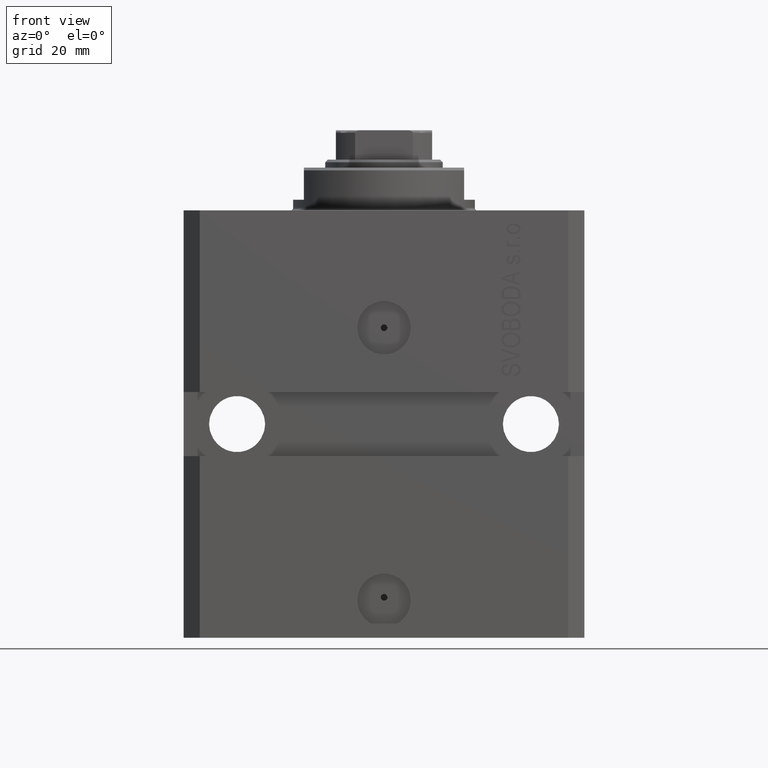
[diagram: clean part render]
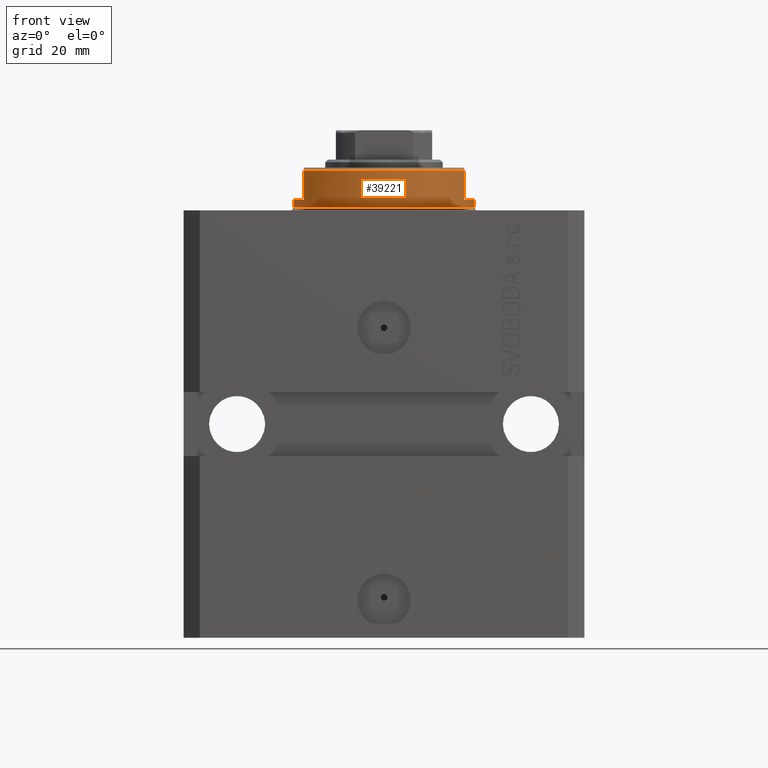
[diagram: same view with one face highlighted and labeled with its STEP entity id]
A machine part, front view. The second image highlights one B-rep face of the part: STEP entity #39221.
In plain terms, the highlighted cylindrical surface (partial cylindrical patch) has radius 17 mm, axis along (0, 0, -1).
Its self-contained STEP definition (entity closure, byte-faithful):
#804 = LINE ( 'NONE', #18800, #24260 ) ;
#1329 = EDGE_CURVE ( 'NONE', #41800, #26841, #804, .T. ) ;
#1713 = VERTEX_POINT ( 'NONE', #13510 ) ;
#1840 = VERTEX_POINT ( 'NONE', #20307 ) ;
#3375 = DIRECTION ( 'NONE',  ( -0.000000000000000000, -0.000000000000000000, 1.000000000000000000 ) ) ;
#3604 = LINE ( 'NONE', #46712, #14459 ) ;
#3856 = EDGE_CURVE ( 'NONE', #34574, #19544, #25253, .T. ) ;
#3862 = DIRECTION ( 'NONE',  ( -0.000000000000000000, -0.000000000000000000, 1.000000000000000000 ) ) ;
#3876 = CARTESIAN_POINT ( 'NONE',  ( 0.000000000000000000, 0.000000000000000000, -8.000000000000000000 ) ) ;
#4361 = FACE_OUTER_BOUND ( 'NONE', #39266, .T. ) ;
#5317 = EDGE_CURVE ( 'NONE', #1713, #21419, #20764, .T. ) ;
#5325 = CARTESIAN_POINT ( 'NONE',  ( 15.00000000000000000, -8.000000000000001776, -7.500000000000007105 ) ) ;
#5501 = ORIENTED_EDGE ( 'NONE', *, *, #5317, .T. ) ;
#7711 = VECTOR ( 'NONE', #38526, 1000.000000000000000 ) ;
#7832 = EDGE_CURVE ( 'NONE', #41800, #38136, #13298, .T. ) ;
#10421 = CARTESIAN_POINT ( 'NONE',  ( 17.00000000000000000, 0.000000000000000000, -2.000000000000000000 ) ) ;
#13271 = ORIENTED_EDGE ( 'NONE', *, *, #34199, .F. ) ;
#13298 = CIRCLE ( 'NONE', #39742, 17.00000000000000000 ) ;
#13510 = CARTESIAN_POINT ( 'NONE',  ( -15.00000000000000000, -8.000000000000001776, -7.500000000000007105 ) ) ;
#13660 = LINE ( 'NONE', #27164, #7711 ) ;
#14459 = VECTOR ( 'NONE', #3375, 1000.000000000000000 ) ;
#16321 = ORIENTED_EDGE ( 'NONE', *, *, #27460, .F. ) ;
#16556 = ORIENTED_EDGE ( 'NONE', *, *, #1329, .T. ) ;
#16857 = ORIENTED_EDGE ( 'NONE', *, *, #29071, .T. ) ;
#17334 = CARTESIAN_POINT ( 'NONE',  ( 14.99999999999999645, -8.000000000000003553, -2.000000000000000000 ) ) ;
#17552 = ORIENTED_EDGE ( 'NONE', *, *, #31372, .T. ) ;
#17933 = DIRECTION ( 'NONE',  ( 0.000000000000000000, 0.000000000000000000, -1.000000000000000000 ) ) ;
#17956 = DIRECTION ( 'NONE',  ( 0.000000000000000000, 0.000000000000000000, -1.000000000000000000 ) ) ;
#18334 = DIRECTION ( 'NONE',  ( -0.000000000000000000, -0.000000000000000000, 1.000000000000000000 ) ) ;
#18383 = DIRECTION ( 'NONE',  ( -1.000000000000000000, 0.000000000000000000, 0.000000000000000000 ) ) ;
#18404 = CARTESIAN_POINT ( 'NONE',  ( 0.000000000000000000, 0.000000000000000000, -2.000000000000000000 ) ) ;
#18460 = AXIS2_PLACEMENT_3D ( 'NONE', #18404, #17933, #21976 ) ;
#18800 = CARTESIAN_POINT ( 'NONE',  ( 17.00000000000000000, 0.000000000000000000, -8.000000000000000000 ) ) ;
#19346 = DIRECTION ( 'NONE',  ( -0.000000000000000000, -0.000000000000000000, -1.000000000000000000 ) ) ;
#19446 = LINE ( 'NONE', #41207, #43198 ) ;
#19544 = VERTEX_POINT ( 'NONE', #37853 ) ;
#19820 = DIRECTION ( 'NONE',  ( 1.000000000000000000, 0.000000000000000000, 0.000000000000000000 ) ) ;
#20307 = CARTESIAN_POINT ( 'NONE',  ( -17.00000000000000000, 2.081899558550500280E-15, -0.5000000000000004441 ) ) ;
#20764 = CIRCLE ( 'NONE', #22289, 17.00000000000000000 ) ;
#21419 = VERTEX_POINT ( 'NONE', #5325 ) ;
#21976 = DIRECTION ( 'NONE',  ( -1.000000000000000000, 0.000000000000000000, 0.000000000000000000 ) ) ;
#22289 = AXIS2_PLACEMENT_3D ( 'NONE', #29045, #39230, #18383 ) ;
#23280 = ORIENTED_EDGE ( 'NONE', *, *, #7832, .F. ) ;
#24260 = VECTOR ( 'NONE', #3862, 1000.000000000000000 ) ;
#25079 = CARTESIAN_POINT ( 'NONE',  ( 0.000000000000000000, 0.000000000000000000, -2.000000000000000000 ) ) ;
#25253 = CIRCLE ( 'NONE', #18460, 17.00000000000000000 ) ;
#26782 = AXIS2_PLACEMENT_3D ( 'NONE', #3876, #18334, #36094 ) ;
#26841 = VERTEX_POINT ( 'NONE', #38842 ) ;
#27164 = CARTESIAN_POINT ( 'NONE',  ( -15.00000000000000000, -8.000000000000001776, -8.000000000000000000 ) ) ;
#27460 = EDGE_CURVE ( 'NONE', #19544, #1840, #3604, .T. ) ;
#29045 = CARTESIAN_POINT ( 'NONE',  ( 0.000000000000000000, 0.000000000000000000, -7.500000000000007105 ) ) ;
#29071 = EDGE_CURVE ( 'NONE', #34574, #1713, #13660, .T. ) ;
#31372 = EDGE_CURVE ( 'NONE', #26841, #1840, #46239, .T. ) ;
#33118 = DIRECTION ( 'NONE',  ( -1.000000000000000000, 0.000000000000000000, 0.000000000000000000 ) ) ;
#34199 = EDGE_CURVE ( 'NONE', #38136, #21419, #19446, .T. ) ;
#34574 = VERTEX_POINT ( 'NONE', #34981 ) ;
#34923 = AXIS2_PLACEMENT_3D ( 'NONE', #38040, #19346, #19820 ) ;
#34981 = CARTESIAN_POINT ( 'NONE',  ( -14.99999999999999645, -8.000000000000003553, -2.000000000000000000 ) ) ;
#36094 = DIRECTION ( 'NONE',  ( 1.000000000000000000, 0.000000000000000000, 0.000000000000000000 ) ) ;
#36328 = CYLINDRICAL_SURFACE ( 'NONE', #26782, 17.00000000000000000 ) ;
#37853 = CARTESIAN_POINT ( 'NONE',  ( -17.00000000000000000, 2.081899558550500280E-15, -2.000000000000000000 ) ) ;
#38040 = CARTESIAN_POINT ( 'NONE',  ( 0.000000000000000000, 0.000000000000000000, -0.5000000000000004441 ) ) ;
#38135 = DIRECTION ( 'NONE',  ( 0.000000000000000000, 0.000000000000000000, -1.000000000000000000 ) ) ;
#38136 = VERTEX_POINT ( 'NONE', #17334 ) ;
#38526 = DIRECTION ( 'NONE',  ( 0.000000000000000000, 0.000000000000000000, -1.000000000000000000 ) ) ;
#38842 = CARTESIAN_POINT ( 'NONE',  ( 17.00000000000000000, 0.000000000000000000, -0.5000000000000004441 ) ) ;
#39221 = ADVANCED_FACE ( 'NONE', ( #4361 ), #36328, .T. ) ;
#39230 = DIRECTION ( 'NONE',  ( 0.000000000000000000, 0.000000000000000000, 1.000000000000000000 ) ) ;
#39266 = EDGE_LOOP ( 'NONE', ( #16321, #39270, #16857, #5501, #13271, #23280, #16556, #17552 ) ) ;
#39270 = ORIENTED_EDGE ( 'NONE', *, *, #3856, .F. ) ;
#39742 = AXIS2_PLACEMENT_3D ( 'NONE', #25079, #17956, #33118 ) ;
#41207 = CARTESIAN_POINT ( 'NONE',  ( 15.00000000000000000, -8.000000000000001776, -8.000000000000000000 ) ) ;
#41800 = VERTEX_POINT ( 'NONE', #10421 ) ;
#43198 = VECTOR ( 'NONE', #38135, 1000.000000000000000 ) ;
#46239 = CIRCLE ( 'NONE', #34923, 17.00000000000000000 ) ;
#46712 = CARTESIAN_POINT ( 'NONE',  ( -17.00000000000000000, 2.081899558550500280E-15, -8.000000000000000000 ) ) ;